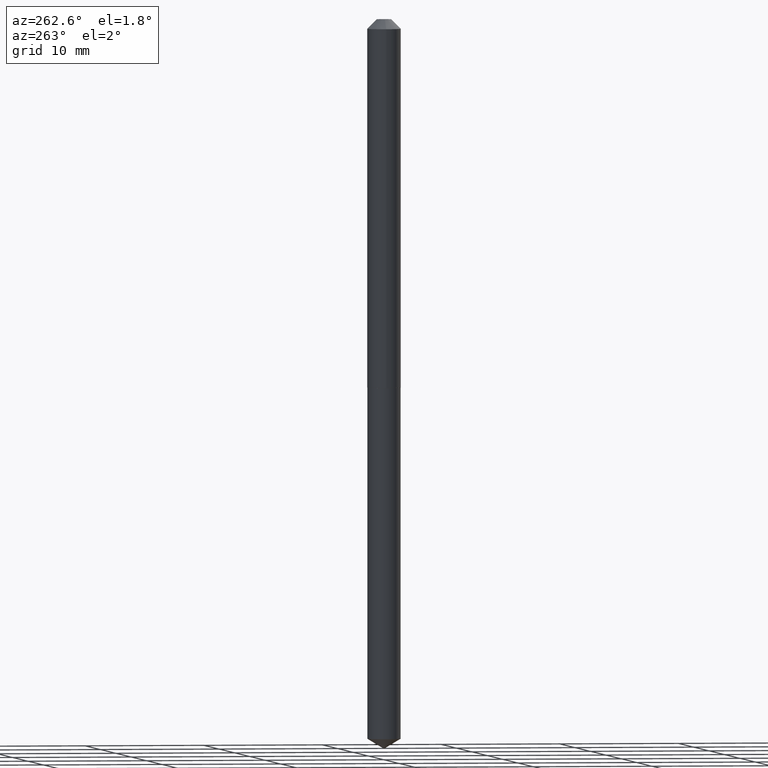
[diagram: clean part render]
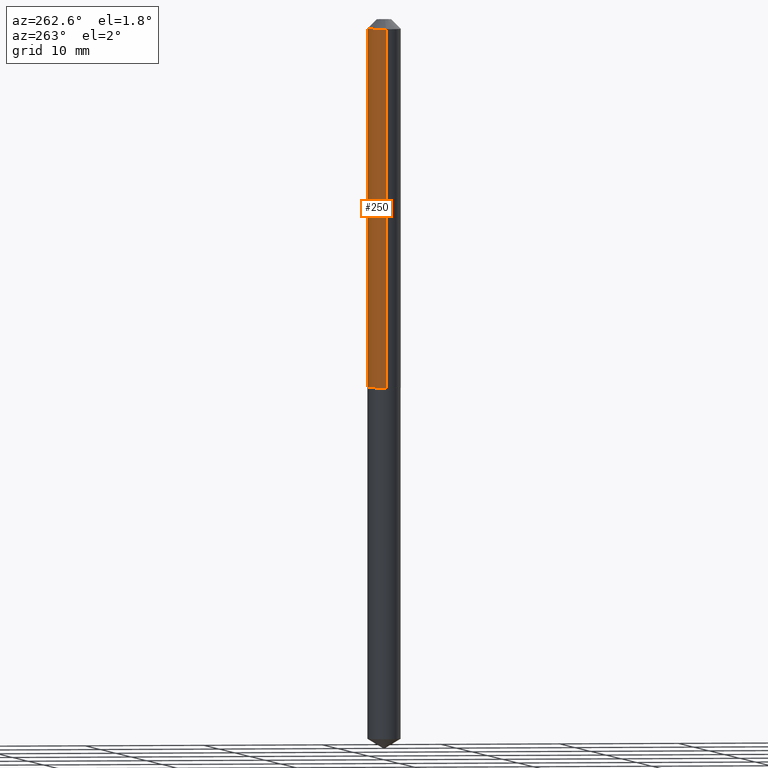
[diagram: same view with one face highlighted and labeled with its STEP entity id]
A machine part, auxiliary view. The second image highlights one B-rep face of the part: STEP entity #250.
In plain terms, the highlighted cylindrical surface (edge-blend (fillet) strip) has radius 1.3995 mm, axis along (-0, 0, 1).
Its self-contained STEP definition (entity closure, byte-faithful):
#26 = VECTOR ( 'NONE', #264, 39.37007874015748143 ) ;
#33 = VERTEX_POINT ( 'NONE', #257 ) ;
#42 = AXIS2_PLACEMENT_3D ( 'NONE', #78, #309, #161 ) ;
#58 = ORIENTED_EDGE ( 'NONE', *, *, #301, .T. ) ;
#66 = CIRCLE ( 'NONE', #133, 0.05510000000000000314 ) ;
#78 = CARTESIAN_POINT ( 'NONE',  ( 2.964152739977004555E-29, -4.232024530811777768E-15, -1.212100000000000399 ) ) ;
#80 = DIRECTION ( 'NONE',  ( 1.000000000000000000, -6.982962677686265133E-15, 4.876176775795935793E-29 ) ) ;
#87 = DIRECTION ( 'NONE',  ( -2.445468806185136597E-29, 3.491481338843145583E-15, 1.000000000000000000 ) ) ;
#93 = VERTEX_POINT ( 'NONE', #345 ) ;
#116 = DIRECTION ( 'NONE',  ( -2.445468806185136597E-29, 3.491481338843145583E-15, 1.000000000000000000 ) ) ;
#128 = EDGE_CURVE ( 'NONE', #33, #280, #312, .T. ) ;
#133 = AXIS2_PLACEMENT_3D ( 'NONE', #355, #116, #290 ) ;
#139 = EDGE_CURVE ( 'NONE', #33, #360, #180, .T. ) ;
#143 = LINE ( 'NONE', #242, #26 ) ;
#144 = FACE_OUTER_BOUND ( 'NONE', #274, .T. ) ;
#147 = CARTESIAN_POINT ( 'NONE',  ( 0.05510000000000000314, -4.938700353793622923E-16, -0.03125000000000020123 ) ) ;
#161 = DIRECTION ( 'NONE',  ( 1.000000000000000000, -6.982962677686265133E-15, 0.000000000000000000 ) ) ;
#180 = CIRCLE ( 'NONE', #42, 0.05510000000000014886 ) ;
#181 = ORIENTED_EDGE ( 'NONE', *, *, #128, .F. ) ;
#206 = VECTOR ( 'NONE', #260, 39.37007874015748143 ) ;
#209 = CARTESIAN_POINT ( 'NONE',  ( 0.000000000000000000, 0.000000000000000000, 0.000000000000000000 ) ) ;
#226 = ORIENTED_EDGE ( 'NONE', *, *, #227, .F. ) ;
#227 = EDGE_CURVE ( 'NONE', #280, #93, #66, .T. ) ;
#230 = CARTESIAN_POINT ( 'NONE',  ( 0.05510000000000008641, -3.847612435405138326E-16, 2.686773403463564871E-30 ) ) ;
#242 = CARTESIAN_POINT ( 'NONE',  ( -0.05510000000000008641, 3.915090474038158164E-16, -2.710333234730456984E-30 ) ) ;
#249 = CARTESIAN_POINT ( 'NONE',  ( -0.05510000000000014886, -3.840515483407961508E-15, -1.212100000000000399 ) ) ;
#250 = ADVANCED_FACE ( 'NONE', ( #144 ), #351, .T. ) ;
#257 = CARTESIAN_POINT ( 'NONE',  ( 0.05510000000000014886, -4.616785774352292143E-15, -1.212100000000000399 ) ) ;
#260 = DIRECTION ( 'NONE',  ( -2.445468806185136877E-29, 3.491481338843145188E-15, 1.000000000000000000 ) ) ;
#264 = DIRECTION ( 'NONE',  ( -2.445468806185136877E-29, 3.491481338843145188E-15, 1.000000000000000000 ) ) ;
#274 = EDGE_LOOP ( 'NONE', ( #329, #58, #226, #181 ) ) ;
#280 = VERTEX_POINT ( 'NONE', #147 ) ;
#290 = DIRECTION ( 'NONE',  ( 1.000000000000000000, -6.982962677686265922E-15, 0.000000000000000000 ) ) ;
#301 = EDGE_CURVE ( 'NONE', #360, #93, #143, .T. ) ;
#309 = DIRECTION ( 'NONE',  ( -2.445468806185136597E-29, 3.491481338843145583E-15, 1.000000000000000000 ) ) ;
#312 = LINE ( 'NONE', #230, #206 ) ;
#313 = AXIS2_PLACEMENT_3D ( 'NONE', #209, #87, #80 ) ;
#329 = ORIENTED_EDGE ( 'NONE', *, *, #139, .T. ) ;
#345 = CARTESIAN_POINT ( 'NONE',  ( -0.05510000000000000314, -1.779057613921496385E-15, -0.03125000000000020123 ) ) ;
#351 = CYLINDRICAL_SURFACE ( 'NONE', #313, 0.05510000000000008641 ) ;
#355 = CARTESIAN_POINT ( 'NONE',  ( 7.642090019328600035E-31, -1.091087918388489897E-16, -0.03125000000000020123 ) ) ;
#360 = VERTEX_POINT ( 'NONE', #249 ) ;